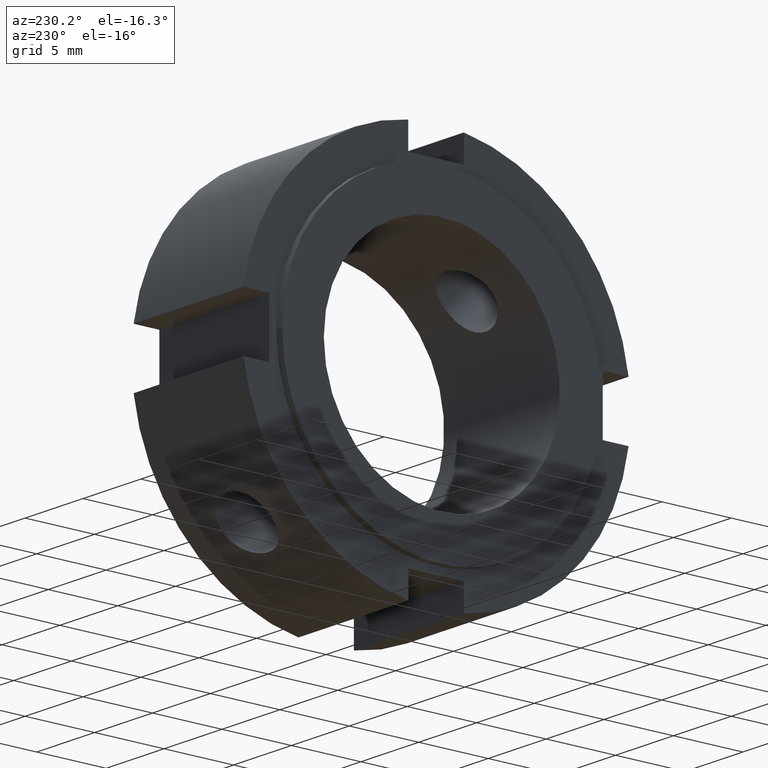
[diagram: clean part render]
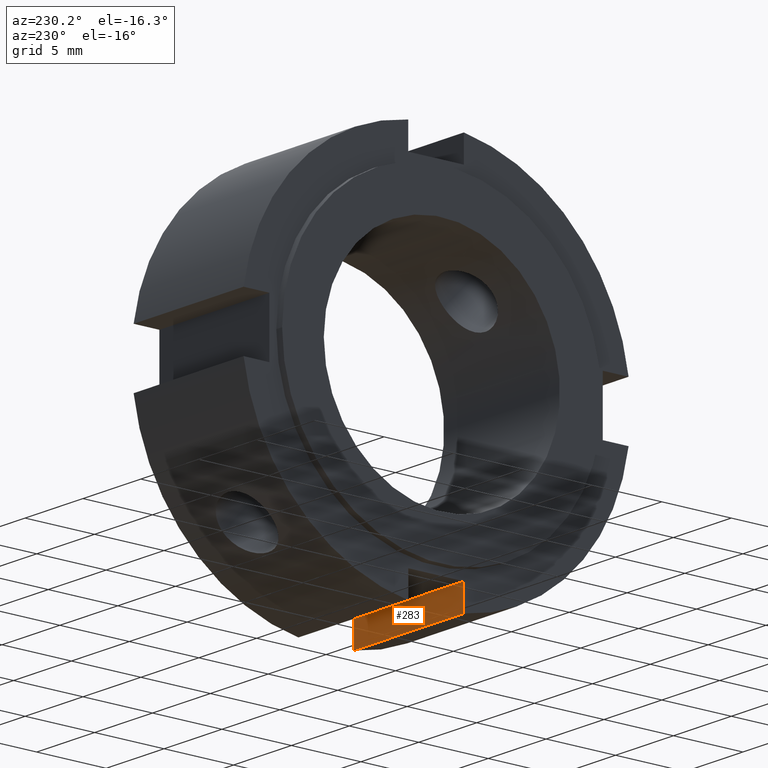
[diagram: same view with one face highlighted and labeled with its STEP entity id]
A machine part, auxiliary view. The second image highlights one B-rep face of the part: STEP entity #283.
In plain terms, the highlighted planar face has unit normal (0, -1, 0).
Its self-contained STEP definition (entity closure, byte-faithful):
#244=CARTESIAN_POINT('',(9.999999999999996,-2.000000000000002,-12.0));
#245=DIRECTION('',(0.0,-1.0,0.0));
#246=DIRECTION('',(-1.0,0.0,0.0));
#247=AXIS2_PLACEMENT_3D('',#244,#245,#246);
#248=PLANE('',#247);
#249=CARTESIAN_POINT('',(0.499999999999998,-2.000000000000002,-12.0));
#250=VERTEX_POINT('',#249);
#251=CARTESIAN_POINT('',(0.499999999999998,-2.000000000000002,-13.856406460551014));
#252=VERTEX_POINT('',#251);
#253=CARTESIAN_POINT('',(0.499999999999998,-2.000000000000002,-12.0));
#254=DIRECTION('',(0.0,0.0,-1.0));
#255=VECTOR('',#254,1.856406460551014);
#256=LINE('',#253,#255);
#257=EDGE_CURVE('',#250,#252,#256,.T.);
#258=ORIENTED_EDGE('',*,*,#257,.F.);
#259=CARTESIAN_POINT('',(9.999999999999996,-2.000000000000002,-12.0));
#260=VERTEX_POINT('',#259);
#261=CARTESIAN_POINT('',(9.999999999999996,-2.000000000000002,-12.0));
#262=DIRECTION('',(-1.0,0.0,0.0));
#263=VECTOR('',#262,9.499999999999996);
#264=LINE('',#261,#263);
#265=EDGE_CURVE('',#260,#250,#264,.T.);
#266=ORIENTED_EDGE('',*,*,#265,.F.);
#267=CARTESIAN_POINT('',(9.999999999999996,-2.000000000000002,-13.856406460551016));
#268=VERTEX_POINT('',#267);
#269=CARTESIAN_POINT('',(9.999999999999996,-2.000000000000002,-13.856406460551016));
#270=DIRECTION('',(0.0,0.0,1.0));
#271=VECTOR('',#270,1.856406460551016);
#272=LINE('',#269,#271);
#273=EDGE_CURVE('',#268,#260,#272,.T.);
#274=ORIENTED_EDGE('',*,*,#273,.F.);
#275=CARTESIAN_POINT('',(0.499999999999998,-2.000000000000002,-13.856406460551016));
#276=DIRECTION('',(1.0,0.0,0.0));
#277=VECTOR('',#276,9.499999999999996);
#278=LINE('',#275,#277);
#279=EDGE_CURVE('',#252,#268,#278,.T.);
#280=ORIENTED_EDGE('',*,*,#279,.F.);
#281=EDGE_LOOP('',(#258,#266,#274,#280));
#282=FACE_OUTER_BOUND('',#281,.T.);
#283=ADVANCED_FACE('',(#282),#248,.F.);